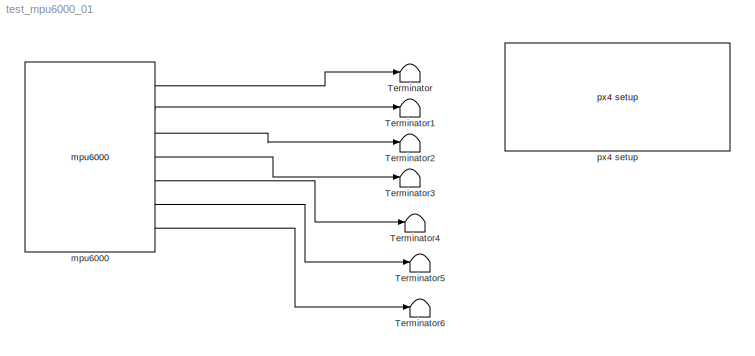
MODEL test_mpu6000_01
KIND model
CONFIG InitFcn = px4_ap1_mdl_callback('check_model');
BLOCK [Terminator] Terminator
  SID = 1
BLOCK [Terminator] Terminator1
  SID = 2
BLOCK [Terminator] Terminator2
  SID = 3
BLOCK [Terminator] Terminator3
  SID = 4
BLOCK [Terminator] Terminator4
  SID = 5
BLOCK [Terminator] Terminator5
  SID = 6
BLOCK [Terminator] Terminator6
  SID = 7
BLOCK [Reference] mpu6000  REF=px4_ap1_mpu_6000_lib/mpu6000
  Description = Setup for PX4 native software
  Ports = [0, 7]
  SID = 8
  SourceBlock = px4_ap1_mpu_6000_lib/mpu6000
  SourceType = PX4_MPU6000
  accXcorr = 1
  accXoff = 0.005
  accYcorr = 1
  accYoff = 0.015
  accZcorr = 1
  accZoff = -0.015
  accelRange = +/- 2g
  filter = 5Hz
  gyroRange = 250°/s
BLOCK [Reference] px4 setup  REF=px4_ap1_px4setup_lib/px4 setup
  Ports = []
  SID = 9
  SampleTimeValue = 1
  SourceBlock = px4_ap1_px4setup_lib/px4 setup
  SourceType = PX4_Target_Setup
  cbBuild = on
  cbPort = COM3
  cbUpload = off
  cpuLoad = off
  debugmode = on
LINE mpu6000:1 -> Terminator:1
LINE mpu6000:2 -> Terminator1:1
LINE mpu6000:3 -> Terminator2:1
LINE mpu6000:4 -> Terminator3:1
LINE mpu6000:5 -> Terminator4:1
LINE mpu6000:6 -> Terminator5:1
LINE mpu6000:7 -> Terminator6:1
